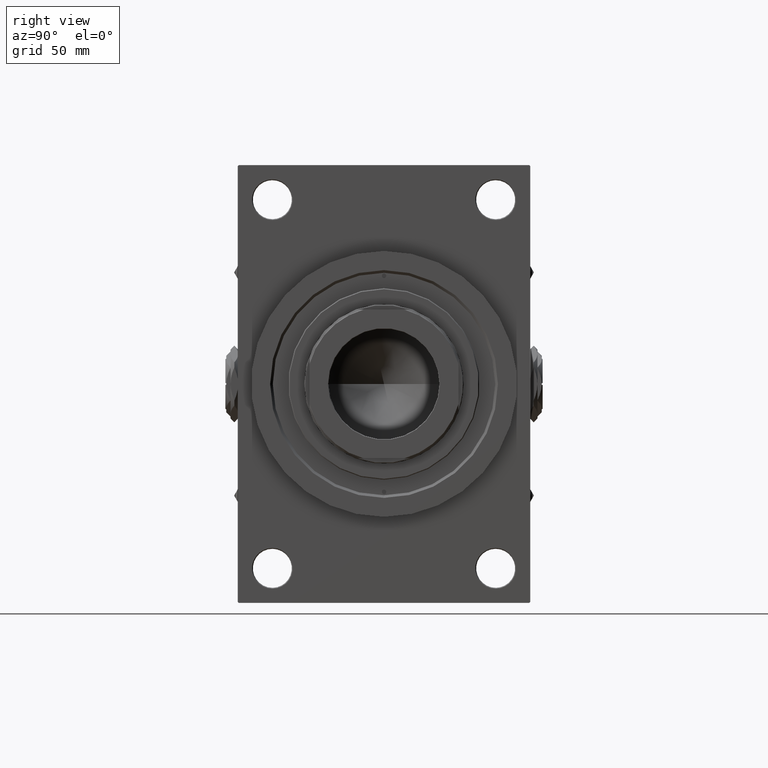
[diagram: clean part render]
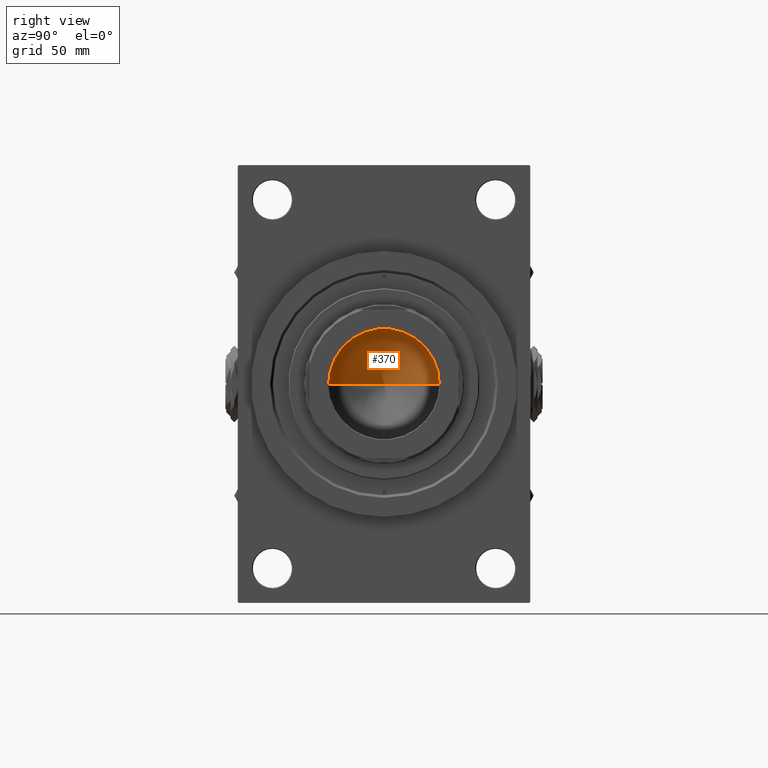
[diagram: same view with one face highlighted and labeled with its STEP entity id]
A machine part, right view. The second image highlights one B-rep face of the part: STEP entity #370.
In plain terms, the highlighted conical surface has half-angle 59 deg.
Its self-contained STEP definition (entity closure, byte-faithful):
#370 = ADVANCED_FACE ( 'NONE', ( #639 ), #30799, .F. ) ;
#639 = FACE_OUTER_BOUND ( 'NONE', #40869, .T. ) ;
#8450 = DIRECTION ( 'NONE',  ( -0.000000000000000000, -0.000000000000000000, 1.000000000000000000 ) ) ;
#9591 = CARTESIAN_POINT ( 'NONE',  ( 31.24999999999998579, 0.000000000000000000, 106.9999999999999858 ) ) ;
#11559 = LINE ( 'NONE', #26181, #11647 ) ;
#11647 = VECTOR ( 'NONE', #41538, 1000.000000000000000 ) ;
#11753 = CARTESIAN_POINT ( 'NONE',  ( -2.278004804806631044E-14, 0.000000000000000000, 88.22310565538870719 ) ) ;
#13216 = CARTESIAN_POINT ( 'NONE',  ( 0.000000000000000000, 0.000000000000000000, 106.9999999999999858 ) ) ;
#14120 = EDGE_CURVE ( 'NONE', #15273, #23641, #11559, .T. ) ;
#14601 = VERTEX_POINT ( 'NONE', #47858 ) ;
#15273 = VERTEX_POINT ( 'NONE', #11753 ) ;
#23641 = VERTEX_POINT ( 'NONE', #28069 ) ;
#24319 = CARTESIAN_POINT ( 'NONE',  ( 0.000000000000000000, 0.000000000000000000, 106.9999999999999858 ) ) ;
#24715 = DIRECTION ( 'NONE',  ( 0.8571673007021118895, 0.000000000000000000, 0.5150380749100549327 ) ) ;
#26181 = CARTESIAN_POINT ( 'NONE',  ( -31.24999999999998579, 3.827021247335477324E-15, 106.9999999999999858 ) ) ;
#28049 = ORIENTED_EDGE ( 'NONE', *, *, #40672, .F. ) ;
#28069 = CARTESIAN_POINT ( 'NONE',  ( -31.24999999999998579, 3.827021247335477324E-15, 106.9999999999999858 ) ) ;
#29336 = DIRECTION ( 'NONE',  ( -0.000000000000000000, -0.000000000000000000, 1.000000000000000000 ) ) ;
#30439 = AXIS2_PLACEMENT_3D ( 'NONE', #13216, #29336, #40423 ) ;
#30799 = CONICAL_SURFACE ( 'NONE', #37216, 31.24999999999998579, 1.029744258676653645 ) ;
#37216 = AXIS2_PLACEMENT_3D ( 'NONE', #24319, #8450, #47482 ) ;
#40423 = DIRECTION ( 'NONE',  ( 1.000000000000000000, 0.000000000000000000, 0.000000000000000000 ) ) ;
#40672 = EDGE_CURVE ( 'NONE', #15273, #14601, #43857, .T. ) ;
#40869 = EDGE_LOOP ( 'NONE', ( #28049, #49650, #45611 ) ) ;
#41538 = DIRECTION ( 'NONE',  ( -0.8571673007021118895, 1.049727191138618079E-16, 0.5150380749100549327 ) ) ;
#43301 = CIRCLE ( 'NONE', #30439, 31.24999999999998579 ) ;
#43807 = EDGE_CURVE ( 'NONE', #23641, #14601, #43301, .T. ) ;
#43857 = LINE ( 'NONE', #9591, #44011 ) ;
#44011 = VECTOR ( 'NONE', #24715, 1000.000000000000000 ) ;
#45611 = ORIENTED_EDGE ( 'NONE', *, *, #43807, .T. ) ;
#47482 = DIRECTION ( 'NONE',  ( 1.000000000000000000, 0.000000000000000000, 0.000000000000000000 ) ) ;
#47858 = CARTESIAN_POINT ( 'NONE',  ( 31.24999999999998579, 0.000000000000000000, 106.9999999999999858 ) ) ;
#49650 = ORIENTED_EDGE ( 'NONE', *, *, #14120, .T. ) ;